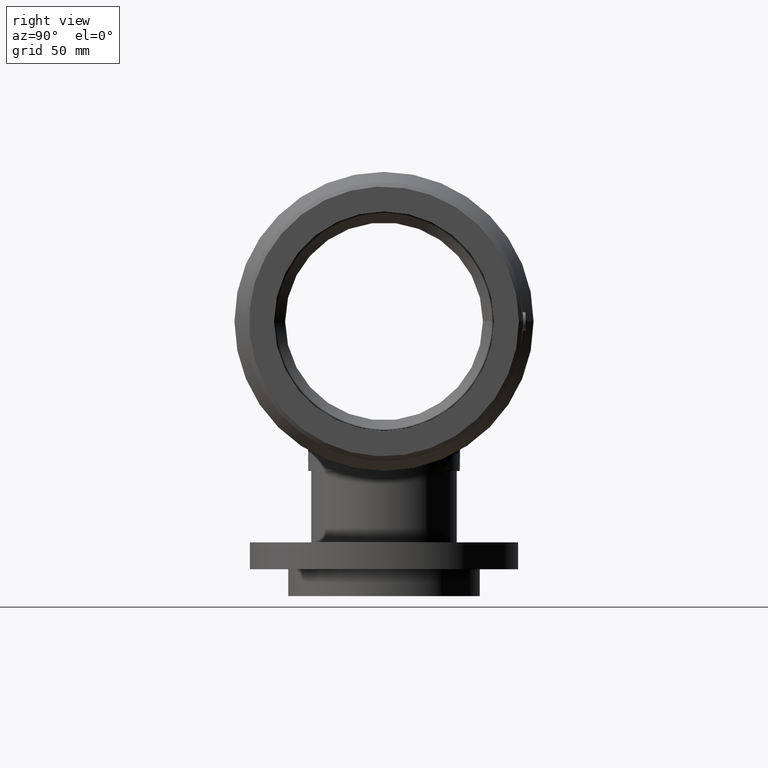
[diagram: clean part render]
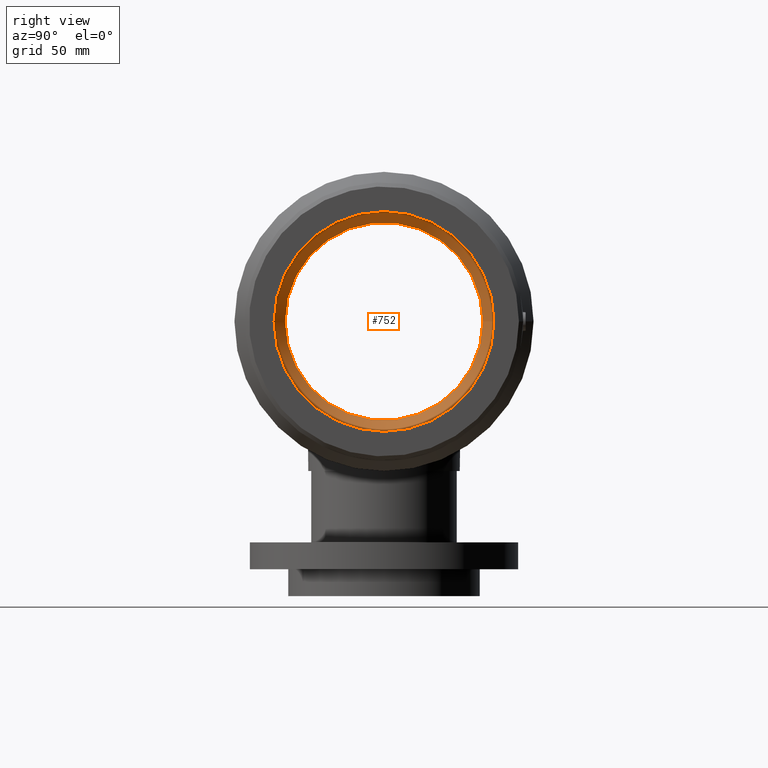
[diagram: same view with one face highlighted and labeled with its STEP entity id]
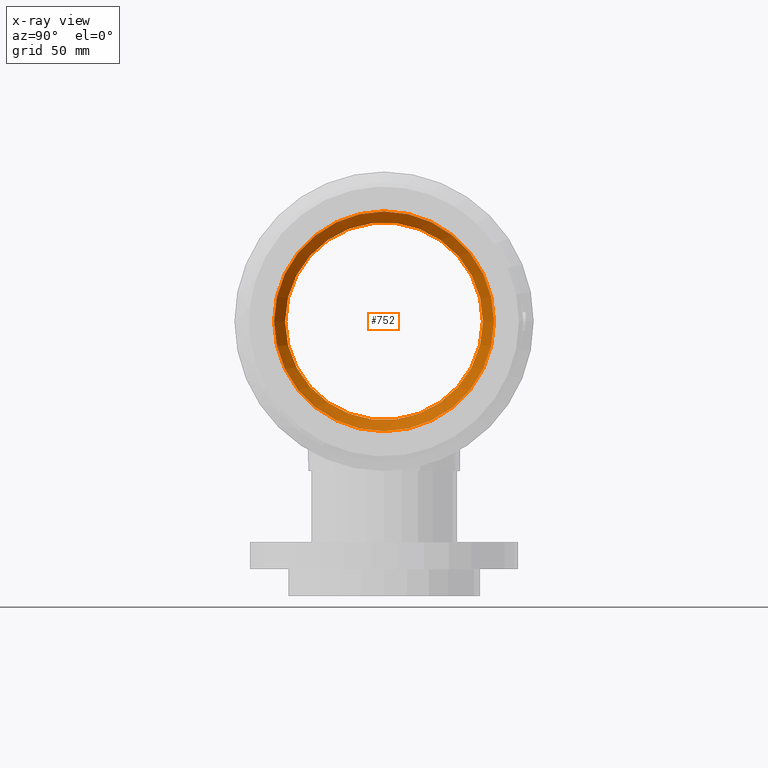
[diagram: x-ray of the same camera — body ghosted, the highlighted face saturated]
A machine part, right view. The second image highlights one B-rep face of the part: STEP entity #752.
The next image is the same camera in x-ray: the body ghosted, the highlighted face saturated — about 0% of this face is hidden behind the body in this view.
In plain terms, the highlighted conical surface has half-angle 45 deg.
Its self-contained STEP definition (entity closure, byte-faithful):
#27=CONICAL_SURFACE('',#871,85.5,45.);
#113=FACE_BOUND('',#398,.T.);
#178=CIRCLE('',#870,90.);
#179=CIRCLE('',#872,81.);
#268=FACE_OUTER_BOUND('',#397,.T.);
#397=EDGE_LOOP('',(#683));
#398=EDGE_LOOP('',(#684));
#481=VERTEX_POINT('',#1709);
#482=VERTEX_POINT('',#1712);
#551=EDGE_CURVE('',#481,#481,#178,.T.);
#552=EDGE_CURVE('',#482,#482,#179,.T.);
#683=ORIENTED_EDGE('',*,*,#551,.T.);
#684=ORIENTED_EDGE('',*,*,#552,.F.);
#752=ADVANCED_FACE('',(#268,#113),#27,.F.);
#870=AXIS2_PLACEMENT_3D('',#1710,#1105,#1106);
#871=AXIS2_PLACEMENT_3D('',#1711,#1107,#1108);
#872=AXIS2_PLACEMENT_3D('',#1713,#1109,#1110);
#1105=DIRECTION('center_axis',(1.,0.,0.));
#1106=DIRECTION('ref_axis',(0.,0.,-1.));
#1107=DIRECTION('center_axis',(1.,0.,0.));
#1108=DIRECTION('ref_axis',(0.,1.,0.));
#1109=DIRECTION('center_axis',(1.,0.,0.));
#1110=DIRECTION('ref_axis',(0.,0.,-1.));
#1709=CARTESIAN_POINT('',(105.,90.,0.));
#1710=CARTESIAN_POINT('Origin',(105.,0.,0.));
#1711=CARTESIAN_POINT('Origin',(100.5,0.,0.));
#1712=CARTESIAN_POINT('',(96.,81.,0.));
#1713=CARTESIAN_POINT('Origin',(96.,0.,0.));